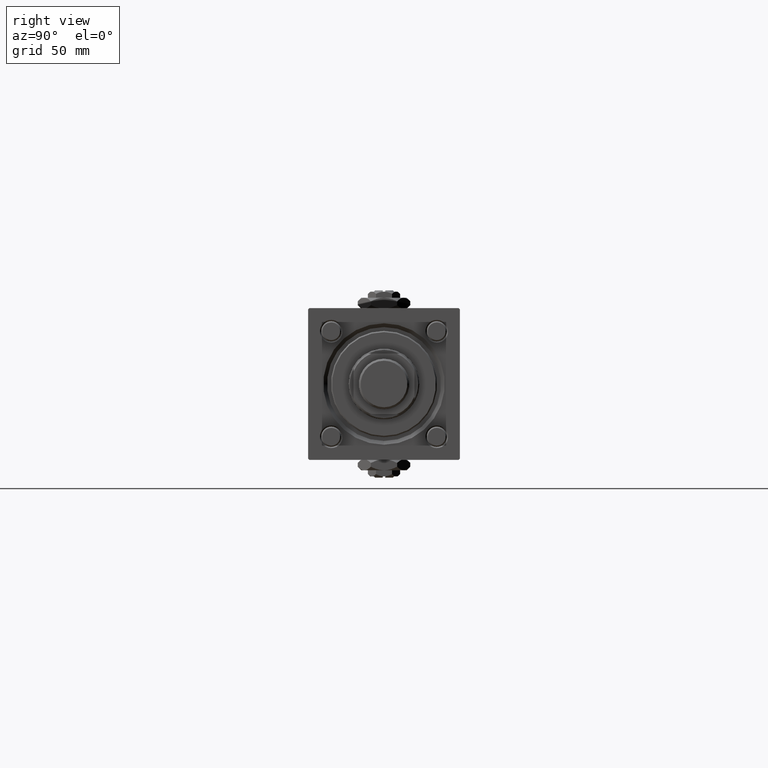
[diagram: clean part render]
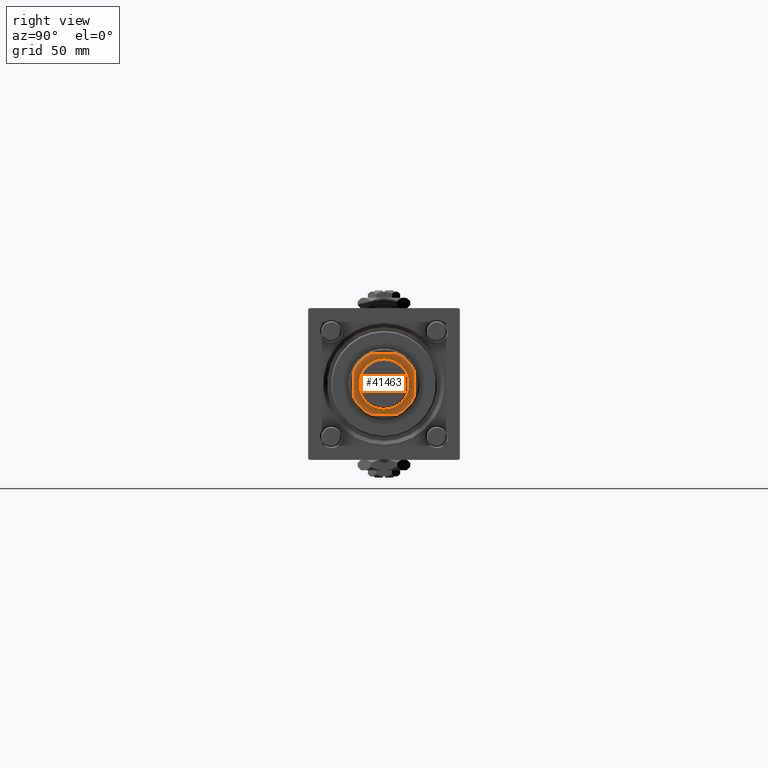
[diagram: same view with one face highlighted and labeled with its STEP entity id]
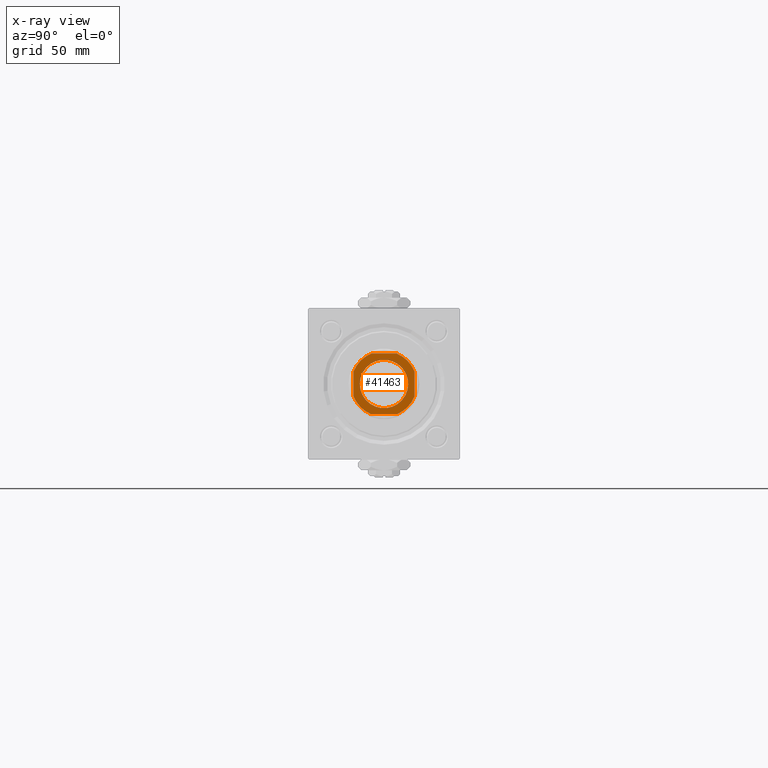
[diagram: x-ray of the same camera — body ghosted, the highlighted face saturated]
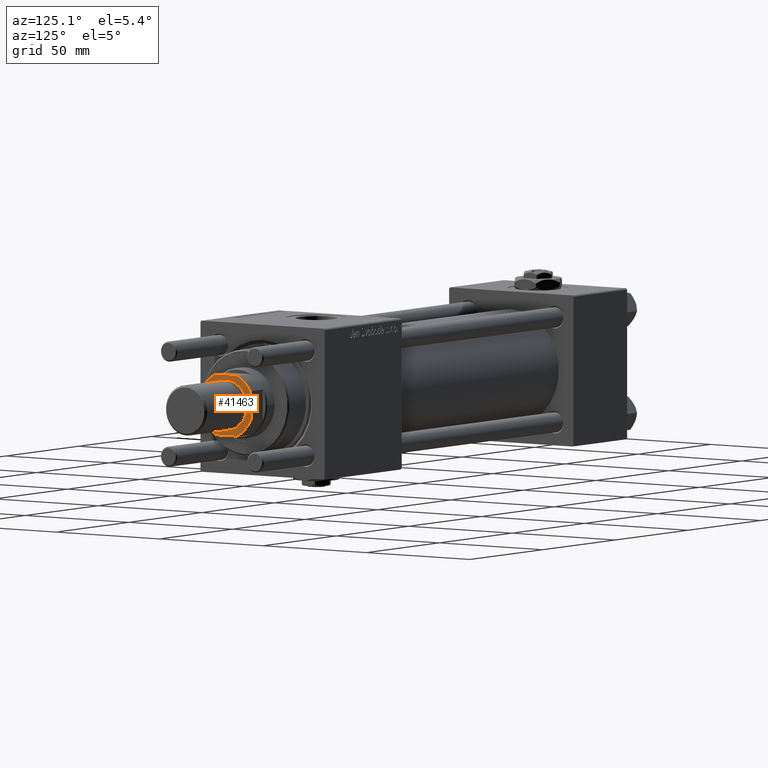
[diagram: same view with one face highlighted and labeled with its STEP entity id]
A machine part, right view. The second image highlights one B-rep face of the part: STEP entity #41463.
The next image is the same camera in x-ray: the body ghosted, the highlighted face saturated — about 0% of this face is hidden behind the body in this view.
A second angle (auxiliary view) of the same face is appended — the face is thin or edge-on in the first view.
In plain terms, the highlighted planar face has unit normal (1, 0, 0).
Its self-contained STEP definition (entity closure, byte-faithful):
#119 = ORIENTED_EDGE ( 'NONE', *, *, #18376, .T. ) ;
#222 = VERTEX_POINT ( 'NONE', #22587 ) ;
#824 = EDGE_CURVE ( 'NONE', #54167, #40966, #40801, .T. ) ;
#1004 = VERTEX_POINT ( 'NONE', #28552 ) ;
#1750 = EDGE_CURVE ( 'NONE', #40966, #54167, #7304, .T. ) ;
#2165 = ORIENTED_EDGE ( 'NONE', *, *, #7196, .T. ) ;
#4813 = AXIS2_PLACEMENT_3D ( 'NONE', #29228, #6434, #56561 ) ;
#5242 = CARTESIAN_POINT ( 'NONE',  ( 0.000000000000000000, 0.000000000000000000, 196.0000000000000000 ) ) ;
#5465 = EDGE_CURVE ( 'NONE', #23297, #30046, #59204, .T. ) ;
#5848 = LINE ( 'NONE', #44213, #45811 ) ;
#6434 = DIRECTION ( 'NONE',  ( -0.000000000000000000, 0.000000000000000000, 1.000000000000000000 ) ) ;
#6793 = CARTESIAN_POINT ( 'NONE',  ( -4.999999999999944933, 11.99999999999999645, 196.0000000000000000 ) ) ;
#6933 = DIRECTION ( 'NONE',  ( -0.000000000000000000, 0.000000000000000000, 1.000000000000000000 ) ) ;
#6958 = CARTESIAN_POINT ( 'NONE',  ( 4.999999999999984013, 11.99999999999999645, 196.0000000000000000 ) ) ;
#7196 = EDGE_CURVE ( 'NONE', #30046, #22113, #5848, .T. ) ;
#7304 = CIRCLE ( 'NONE', #18832, 9.550000000000002487 ) ;
#7821 = CARTESIAN_POINT ( 'NONE',  ( -12.00000000000000000, 4.999999999999936051, 196.0000000000000000 ) ) ;
#7968 = VERTEX_POINT ( 'NONE', #15560 ) ;
#8395 = DIRECTION ( 'NONE',  ( -2.891205793294678326E-16, 1.000000000000000000, -0.000000000000000000 ) ) ;
#9526 = EDGE_CURVE ( 'NONE', #22113, #32368, #13330, .T. ) ;
#11713 = EDGE_CURVE ( 'NONE', #1004, #7968, #40551, .T. ) ;
#12496 = CARTESIAN_POINT ( 'NONE',  ( 11.99999999999999822, 4.999999999999980460, 196.0000000000000000 ) ) ;
#12826 = VERTEX_POINT ( 'NONE', #25737 ) ;
#12869 = DIRECTION ( 'NONE',  ( 7.228014483236695816E-17, -1.000000000000000000, 0.000000000000000000 ) ) ;
#13243 = FACE_OUTER_BOUND ( 'NONE', #45913, .T. ) ;
#13330 = CIRCLE ( 'NONE', #29598, 12.99999999999997513 ) ;
#13350 = CARTESIAN_POINT ( 'NONE',  ( 0.000000000000000000, 0.000000000000000000, 196.0000000000000000 ) ) ;
#13915 = ORIENTED_EDGE ( 'NONE', *, *, #31754, .T. ) ;
#15560 = CARTESIAN_POINT ( 'NONE',  ( 4.999999999999998224, -12.00000000000000355, 196.0000000000000000 ) ) ;
#16514 = CARTESIAN_POINT ( 'NONE',  ( 0.000000000000000000, 0.000000000000000000, 196.0000000000000000 ) ) ;
#18376 = EDGE_CURVE ( 'NONE', #7968, #12826, #54584, .T. ) ;
#18644 = DIRECTION ( 'NONE',  ( 1.000000000000000000, 0.000000000000000000, 0.000000000000000000 ) ) ;
#18832 = AXIS2_PLACEMENT_3D ( 'NONE', #13350, #23762, #24051 ) ;
#20587 = ORIENTED_EDGE ( 'NONE', *, *, #48795, .T. ) ;
#22113 = VERTEX_POINT ( 'NONE', #6793 ) ;
#22184 = CARTESIAN_POINT ( 'NONE',  ( -12.00000000000000000, 11.99999999999999645, 196.0000000000000000 ) ) ;
#22587 = CARTESIAN_POINT ( 'NONE',  ( -12.00000000000000000, -4.999999999999980460, 196.0000000000000000 ) ) ;
#22854 = DIRECTION ( 'NONE',  ( 1.000000000000000000, 0.000000000000000000, 0.000000000000000000 ) ) ;
#23297 = VERTEX_POINT ( 'NONE', #12496 ) ;
#23762 = DIRECTION ( 'NONE',  ( 0.000000000000000000, -0.000000000000000000, -1.000000000000000000 ) ) ;
#24051 = DIRECTION ( 'NONE',  ( 1.000000000000000000, 0.000000000000000000, 0.000000000000000000 ) ) ;
#24668 = EDGE_LOOP ( 'NONE', ( #44744, #45205 ) ) ;
#24743 = CARTESIAN_POINT ( 'NONE',  ( -9.550000000000002487, 1.169537693185722558E-15, 196.0000000000000000 ) ) ;
#25367 = DIRECTION ( 'NONE',  ( -0.000000000000000000, 0.000000000000000000, 1.000000000000000000 ) ) ;
#25469 = AXIS2_PLACEMENT_3D ( 'NONE', #32434, #27056, #22854 ) ;
#25528 = DIRECTION ( 'NONE',  ( 1.000000000000000000, 0.000000000000000000, 0.000000000000000000 ) ) ;
#25737 = CARTESIAN_POINT ( 'NONE',  ( 12.00000000000000178, -5.000000000000004441, 196.0000000000000000 ) ) ;
#27056 = DIRECTION ( 'NONE',  ( -0.000000000000000000, 0.000000000000000000, 1.000000000000000000 ) ) ;
#27396 = AXIS2_PLACEMENT_3D ( 'NONE', #5242, #51443, #33404 ) ;
#27633 = CARTESIAN_POINT ( 'NONE',  ( -11.99999999999999822, -12.00000000000000355, 196.0000000000000000 ) ) ;
#28552 = CARTESIAN_POINT ( 'NONE',  ( -4.999999999999971578, -12.00000000000000355, 196.0000000000000000 ) ) ;
#29228 = CARTESIAN_POINT ( 'NONE',  ( 0.000000000000000000, 0.000000000000000000, 196.0000000000000000 ) ) ;
#29598 = AXIS2_PLACEMENT_3D ( 'NONE', #56432, #59246, #54729 ) ;
#30046 = VERTEX_POINT ( 'NONE', #6958 ) ;
#30424 = AXIS2_PLACEMENT_3D ( 'NONE', #16514, #6933, #25528 ) ;
#30452 = CARTESIAN_POINT ( 'NONE',  ( 0.000000000000000000, 0.000000000000000000, 196.0000000000000000 ) ) ;
#31346 = DIRECTION ( 'NONE',  ( 1.000000000000000000, 0.000000000000000000, 0.000000000000000000 ) ) ;
#31754 = EDGE_CURVE ( 'NONE', #12826, #23297, #54606, .T. ) ;
#32130 = ORIENTED_EDGE ( 'NONE', *, *, #52307, .T. ) ;
#32143 = ORIENTED_EDGE ( 'NONE', *, *, #11713, .T. ) ;
#32368 = VERTEX_POINT ( 'NONE', #7821 ) ;
#32434 = CARTESIAN_POINT ( 'NONE',  ( 0.000000000000000000, 0.000000000000000000, 196.0000000000000000 ) ) ;
#33404 = DIRECTION ( 'NONE',  ( 1.000000000000000000, 0.000000000000000000, 0.000000000000000000 ) ) ;
#33856 = VECTOR ( 'NONE', #8395, 1000.000000000000000 ) ;
#36346 = FACE_BOUND ( 'NONE', #24668, .T. ) ;
#36683 = ORIENTED_EDGE ( 'NONE', *, *, #9526, .T. ) ;
#36852 = CARTESIAN_POINT ( 'NONE',  ( 9.550000000000002487, 0.000000000000000000, 196.0000000000000000 ) ) ;
#37163 = VECTOR ( 'NONE', #12869, 1000.000000000000000 ) ;
#40551 = LINE ( 'NONE', #27633, #43906 ) ;
#40801 = CIRCLE ( 'NONE', #27396, 9.550000000000002487 ) ;
#40966 = VERTEX_POINT ( 'NONE', #24743 ) ;
#41463 = ADVANCED_FACE ( 'NONE', ( #36346, #13243 ), #50765, .T. ) ;
#43906 = VECTOR ( 'NONE', #18644, 1000.000000000000000 ) ;
#44213 = CARTESIAN_POINT ( 'NONE',  ( -12.00000000000000000, 11.99999999999999645, 196.0000000000000000 ) ) ;
#44744 = ORIENTED_EDGE ( 'NONE', *, *, #824, .T. ) ;
#45010 = AXIS2_PLACEMENT_3D ( 'NONE', #30452, #25367, #31346 ) ;
#45205 = ORIENTED_EDGE ( 'NONE', *, *, #1750, .T. ) ;
#45811 = VECTOR ( 'NONE', #58030, 1000.000000000000000 ) ;
#45884 = CARTESIAN_POINT ( 'NONE',  ( 11.99999999999999645, 11.99999999999999645, 196.0000000000000000 ) ) ;
#45913 = EDGE_LOOP ( 'NONE', ( #13915, #46532, #2165, #36683, #20587, #32130, #32143, #119 ) ) ;
#46532 = ORIENTED_EDGE ( 'NONE', *, *, #5465, .T. ) ;
#48795 = EDGE_CURVE ( 'NONE', #32368, #222, #53995, .T. ) ;
#50765 = PLANE ( 'NONE',  #25469 ) ;
#51443 = DIRECTION ( 'NONE',  ( 0.000000000000000000, -0.000000000000000000, -1.000000000000000000 ) ) ;
#51809 = CIRCLE ( 'NONE', #4813, 12.99999999999999289 ) ;
#52307 = EDGE_CURVE ( 'NONE', #222, #1004, #51809, .T. ) ;
#53995 = LINE ( 'NONE', #22184, #37163 ) ;
#54167 = VERTEX_POINT ( 'NONE', #36852 ) ;
#54584 = CIRCLE ( 'NONE', #45010, 13.00000000000000355 ) ;
#54606 = LINE ( 'NONE', #45884, #33856 ) ;
#54729 = DIRECTION ( 'NONE',  ( 1.000000000000000000, 0.000000000000000000, 0.000000000000000000 ) ) ;
#56432 = CARTESIAN_POINT ( 'NONE',  ( 0.000000000000000000, 0.000000000000000000, 196.0000000000000000 ) ) ;
#56561 = DIRECTION ( 'NONE',  ( 1.000000000000000000, 0.000000000000000000, 0.000000000000000000 ) ) ;
#58030 = DIRECTION ( 'NONE',  ( -1.000000000000000000, -0.000000000000000000, -0.000000000000000000 ) ) ;
#59204 = CIRCLE ( 'NONE', #30424, 12.99999999999999112 ) ;
#59246 = DIRECTION ( 'NONE',  ( -0.000000000000000000, 0.000000000000000000, 1.000000000000000000 ) ) ;